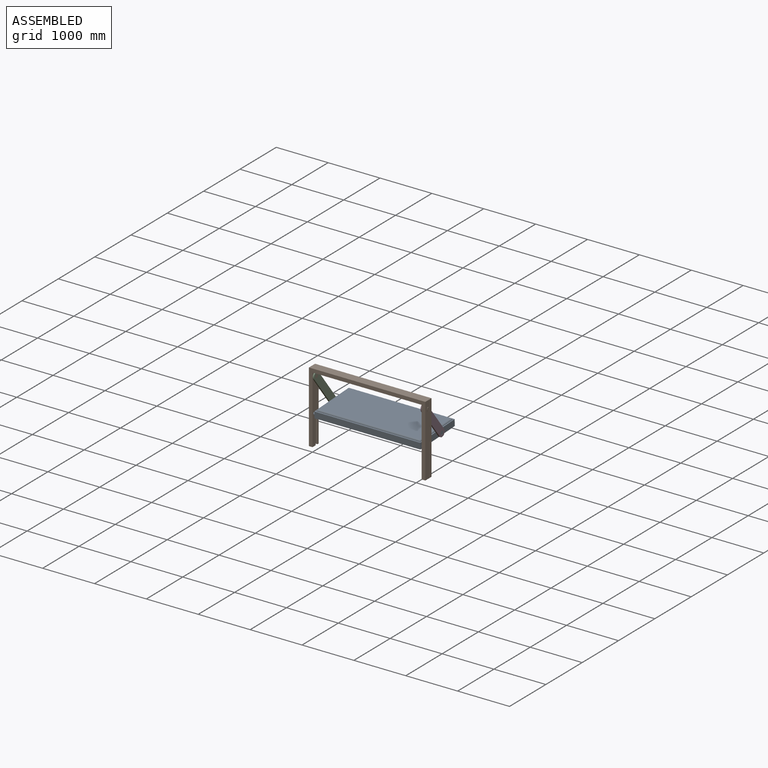
[diagram: assembled view]
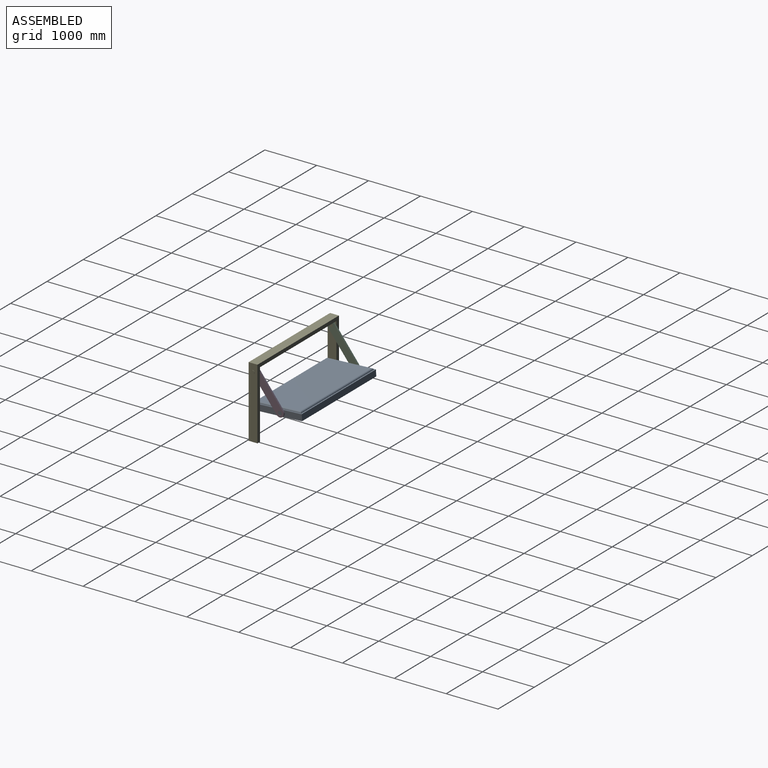
[diagram: assembled view, second angle]
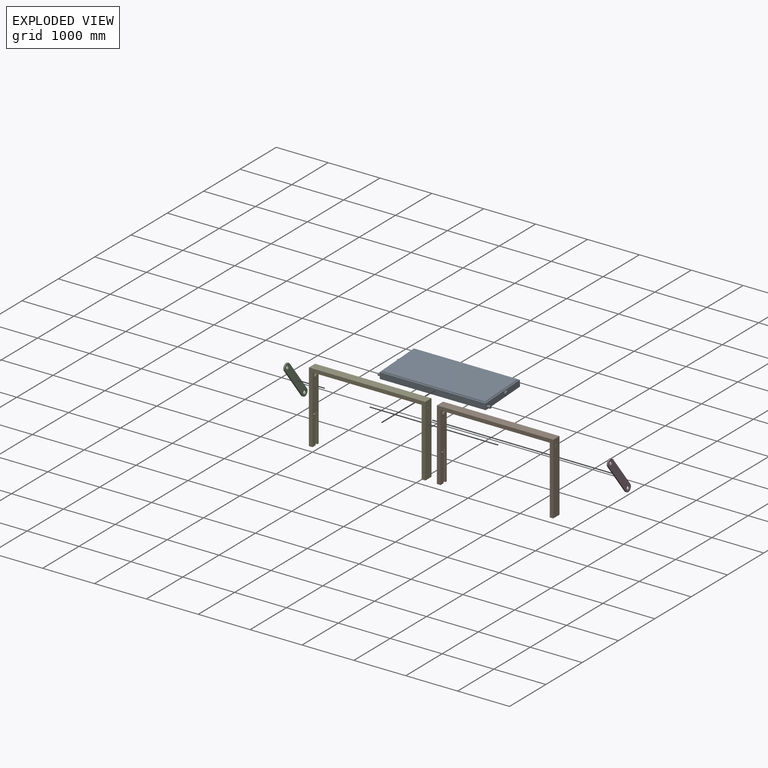
[diagram: exploded view]
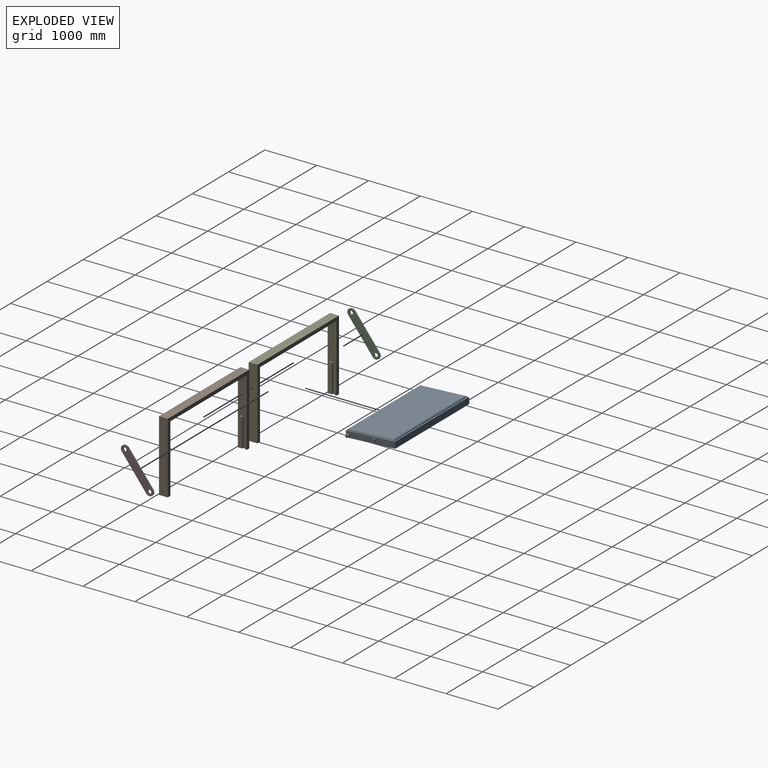
[diagram: exploded view, second angle]
ASSEMBLY  parts=5 mates=4
PART A: 23 faces, bbox 2163.9x948x150 mm
  f0: cylinder r=36.15mm len=72.31mm, axis (-1,0,0), area 7723.2mm2, adj f1,f8
  f1: plane 72.31x72.31mm, normal (1,0,0), area 4106.1mm2, adj f0
  f2: plane 2042x120mm, normal (0,1,0), area 245040mm2, adj f3,f14,f15,f16
  f3: plane 120x24mm, normal (1,0,0), area 2880mm2, adj f2,f4,f14,f16
  f4: plane 120x1.95mm, normal (0,1,0), area 233.5mm2, adj f3,f8,f14,f16
  f5: plane 2042x120mm, normal (0,-1,0), area 245040mm2, adj f6,f14,f15,f16
  f6: plane 120x24mm, normal (1,0,0), area 2880mm2, adj f5,f7,f14,f16
  f7: plane 120x1.95mm, normal (0,-1,0), area 233.5mm2, adj f6,f8,f14,f16
  f8: plane 900x120mm, normal (1,0,0), area 102101.3mm2, adj f0,f4,f7,f14,f16,f21
  f9: plane 1940x840mm, normal (0,0,1), area 1629600mm2, adj f10,f11,f12,f13
  f10: cylinder r=30mm len=900mm, axis (0,1,0), area 41384.1mm2, adj f9,f11,f12,f14
  f11: cylinder r=30mm len=2000mm, axis (1,0,0), area 93220.3mm2, adj f9,f10,f13,f14
  f12: cylinder r=30mm len=2000mm, axis (-1,0,0), area 93220.3mm2, adj f9,f10,f13,f14
  f13: cylinder r=30mm len=900mm, axis (0,-1,0), area 41384.1mm2, adj f9,f11,f12,f14
  f14: plane 2043.95x948mm, normal (0,0,1), area 137566.9mm2, adj f2,f3,f4,f5,f6,f7,f8,f10
  f15: plane 948x120mm, normal (-1,0,0), area 107861.3mm2, adj f2,f5,f14,f16,f17,f19
  f16: plane 2043.95x948mm, normal (0,0,-1), area 1937566.9mm2, adj f2,f3,f4,f5,f6,f7,f8,f15
  f17: cylinder r=36.15mm len=72.31mm, axis (1,0,0), area 7723.2mm2, adj f15,f18
  f18: plane 72.31x72.31mm, normal (-1,0,0), area 4106.1mm2, adj f17
  f19: cylinder r=23.89mm len=60mm, axis (1,0,0), area 9005.4mm2, adj f15,f20
  f20: plane 47.78x47.78mm, normal (-1,0,0), area 1792.6mm2, adj f19
  f21: cylinder r=23.89mm len=60mm, axis (-1,0,0), area 9005.4mm2, adj f8,f22
  f22: plane 47.78x47.78mm, normal (1,0,0), area 1792.6mm2, adj f21
PART B: 32 faces, bbox 2251.9x170x1370 mm
  f0: plane 2103.95x170mm, normal (0,0,-1), area 357670.7mm2, adj f1,f3,f4,f19
  f1: plane 2243.95x1370mm, normal (0,1,0), area 339076.2mm2, adj f0,f2,f4,f5,f17,f18,f19,f20
  f2: plane 1370x170mm, normal (1,0,0), area 228793.9mm2, adj f1,f3,f5,f15,f18
  f3: plane 2243.95x1370mm, normal (0,-1,0), area 339076.2mm2, adj f0,f2,f4,f5,f17,f18,f19,f20
  f4: plane 1300x170mm, normal (-1,0,0), area 184246.3mm2, adj f0,f1,f3,f5,f6,f7,f8,f9
  f5: plane 170x70mm, normal (0,0,-1), area 10400mm2, adj f1,f2,f3,f4,f6,f11,f12
  f6: plane 575x30mm, normal (0,-1,0), area 17250mm2, adj f4,f5,f7,f12
  f7: cylinder r=25mm len=30mm, axis (-1,0,0), area 1178.1mm2, adj f4,f6,f8,f12
  f8: plane 61x30mm, normal (0,0,-1), area 1830mm2, adj f4,f7,f9,f12
  f9: cylinder r=25mm len=50mm, axis (-1,0,0), area 2356.2mm2, adj f4,f8,f10,f12
  f10: plane 36x30mm, normal (0,0,1), area 1080mm2, adj f4,f9,f11,f12
  f11: plane 550x30mm, normal (0,1,0), area 16500mm2, adj f4,f5,f10,f12
  f12: plane 600x111mm, normal (-1,0,0), area 32647.6mm2, adj f5,f6,f7,f8,f9,f10,f11
  f13: plane 72.31x72.31mm, normal (-1,0,0), area 4106.1mm2, adj f14
  f14: cylinder r=36.15mm len=72.31mm, axis (-1,0,0), area 5906mm2, adj f4,f13
  f15: cylinder r=36.15mm len=72.31mm, axis (-1,0,0), area 908.6mm2, adj f2,f16
  f16: plane 72.31x72.31mm, normal (1,0,0), area 4106.1mm2, adj f15
  f17: plane 1370x170mm, normal (-1,0,0), area 228793.9mm2, adj f1,f3,f18,f20,f30
  f18: plane 2243.95x170mm, normal (0,0,1), area 381470.7mm2, adj f1,f2,f3,f17
  f19: plane 1300x170mm, normal (1,0,0), area 184246.3mm2, adj f0,f1,f3,f20,f21,f22,f23,f24
  f20: plane 170x70mm, normal (0,0,-1), area 10400mm2, adj f1,f3,f17,f19,f21,f26,f27
  f21: plane 575x30mm, normal (0,-1,0), area 17250mm2, adj f19,f20,f22,f27
  f22: cylinder r=25mm len=30mm, axis (1,0,0), area 1178.1mm2, adj f19,f21,f23,f27
  f23: plane 61x30mm, normal (0,0,-1), area 1830mm2, adj f19,f22,f24,f27
  f24: cylinder r=25mm len=50mm, axis (1,0,0), area 2356.2mm2, adj f19,f23,f25,f27
  f25: plane 36x30mm, normal (0,0,1), area 1080mm2, adj f19,f24,f26,f27
  f26: plane 550x30mm, normal (0,1,0), area 16500mm2, adj f19,f20,f25,f27
  f27: plane 600x111mm, normal (1,0,0), area 32647.6mm2, adj f20,f21,f22,f23,f24,f25,f26
  f28: plane 72.31x72.31mm, normal (1,0,0), area 4106.1mm2, adj f29
  f29: cylinder r=36.15mm len=72.31mm, axis (1,0,0), area 5906mm2, adj f19,f28
  f30: cylinder r=36.15mm len=72.31mm, axis (1,0,0), area 908.6mm2, adj f17,f31
  f31: plane 72.31x72.31mm, normal (-1,0,0), area 4106.1mm2, adj f30
PART C: 8 faces, bbox 30x616.6x768 mm
  f0: plane 618.01x466.55mm, normal (0,-0.8,-0.6), area 23230.4mm2, adj f1,f4,f6,f7
  f1: cylinder r=75mm len=134.86mm, axis (-1,0,0), area 7068.6mm2, adj f0,f2,f6,f7
  f2: plane 618.01x466.55mm, normal (0,0.8,0.6), area 23230.4mm2, adj f1,f4,f6,f7
  f3: cylinder r=36.81mm len=73.62mm, axis (-1,0,0), area 6938.5mm2, adj f6,f7
  f4: cylinder r=75mm len=134.86mm, axis (-1,0,0), area 7068.6mm2, adj f0,f2,f6,f7
  f5: cylinder r=34.38mm len=68.75mm, axis (-1,0,0), area 6479.6mm2, adj f6,f7
  f6: plane 768.01x616.55mm, normal (1,0,0), area 125854.3mm2, adj f0,f1,f2,f3,f4,f5
  f7: plane 768.01x616.55mm, normal (-1,0,0), area 125854.3mm2, adj f0,f1,f2,f3,f4,f5
PART D: 8 faces, bbox 30x616.6x768 mm
  f0: plane 618.01x466.55mm, normal (0,-0.8,-0.6), area 23230.4mm2, adj f1,f4,f6,f7
  f1: cylinder r=75mm len=134.86mm, axis (1,0,0), area 7068.6mm2, adj f0,f2,f6,f7
  f2: plane 618.01x466.55mm, normal (0,0.8,0.6), area 23230.4mm2, adj f1,f4,f6,f7
  f3: cylinder r=36.81mm len=73.62mm, axis (1,0,0), area 6938.5mm2, adj f6,f7
  f4: cylinder r=75mm len=134.86mm, axis (1,0,0), area 7068.6mm2, adj f0,f2,f6,f7
  f5: cylinder r=34.38mm len=68.75mm, axis (1,0,0), area 6479.6mm2, adj f6,f7
  f6: plane 768.01x616.55mm, normal (-1,0,0), area 125854.3mm2, adj f0,f1,f2,f3,f4,f5
  f7: plane 768.01x616.55mm, normal (1,0,0), area 125854.3mm2, adj f0,f1,f2,f3,f4,f5
PART E: same geometry as B
PLACE A rot(axis=(1,0,0),3.1deg) t=(0,4.46,27.2)mm
PLACE B at identity fixed
PLACE C rot(axis=(1,0,0),0.8deg) t=(-4,7.62,11.81)mm
PLACE D rot(axis=(1,0,0),0.8deg) t=(4,7.62,11.81)mm
PLACE E at identity
MATE revolute C.f4 <-> B.f14  axis (1,0,0) through (-1025.97,-844.99,553.66)mm
MATE revolute A.f0 <-> C.f1  axis (-1,0,0) through (-1055.97,-369.88,-57.81)mm
MATE revolute D.f4 <-> B.f14  axis (-1,0,0) through (1025.97,-844.99,553.66)mm
MATE revolute D.f1 <-> A.f0  axis (1,0,0) through (1055.97,-369.88,-57.81)mm
